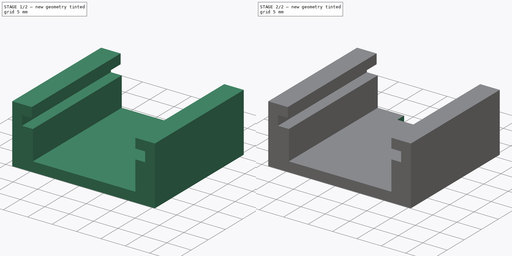
[diagram: build sequence overview — one tinted view per stage of 2, left to right]
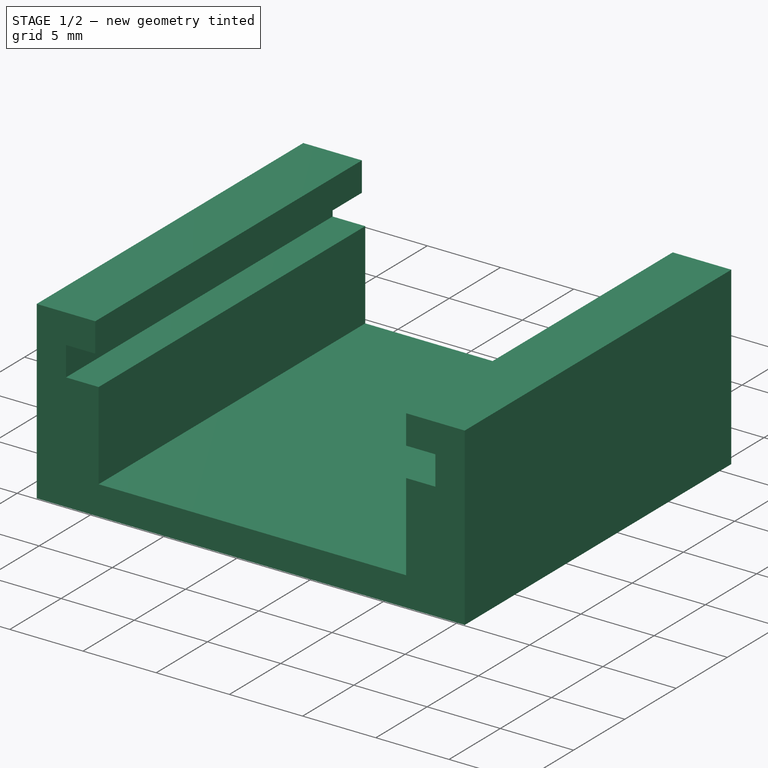
[diagram: stage 1 of 2 — iso view after this stage's code; geometry added in this stage tinted green]
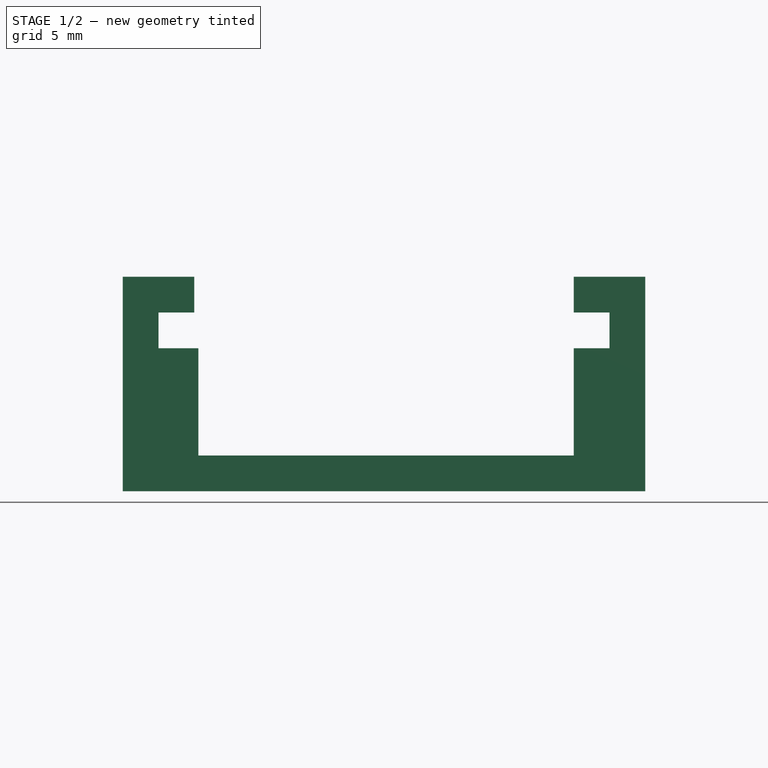
[diagram: stage 1 of 2 — front view after this stage's code; geometry added in this stage tinted green]
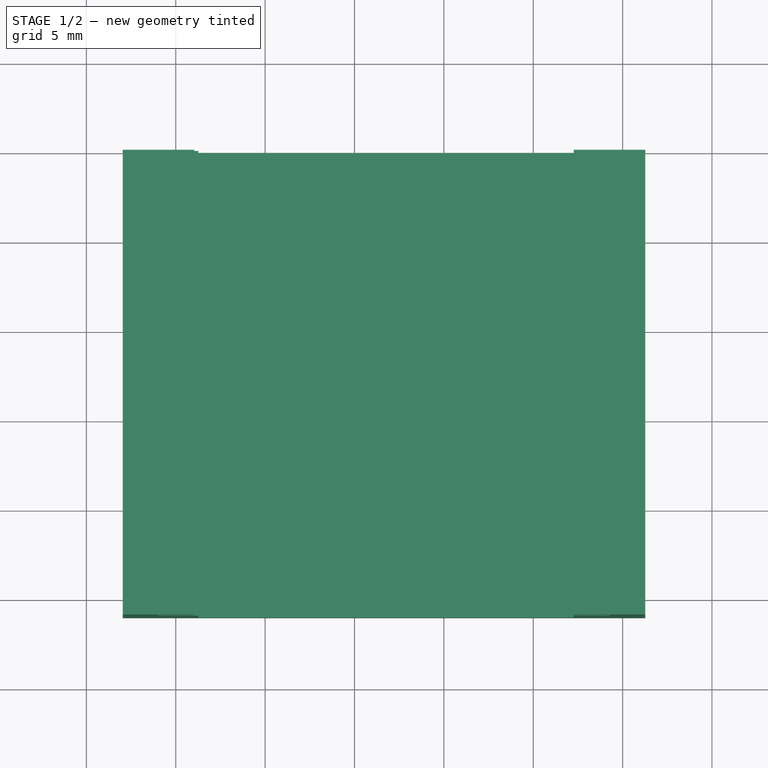
[diagram: stage 1 of 2 — top view after this stage's code; geometry added in this stage tinted green]
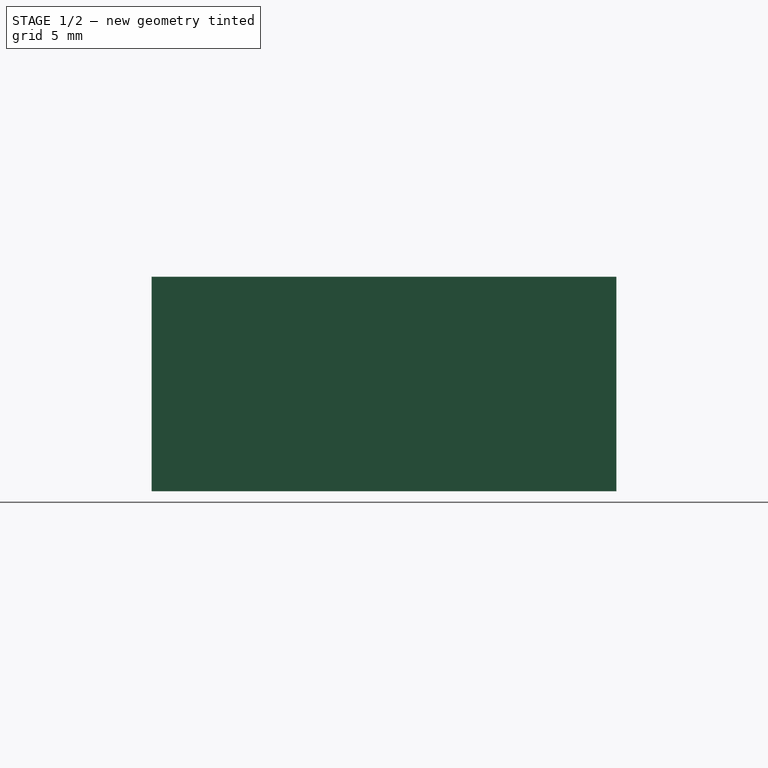
[diagram: stage 1 of 2 — right view after this stage's code; geometry added in this stage tinted green]
FCSTD DOCUMENT  (FreeCAD 0.20R29410 (Git))
Label: extrusión
License: All rights reserved
LicenseURL: http://en.wikipedia.org/wiki/All_rights_reserved
objects: Sketcher::SketchObject×2, PartDesign::Pad×1, PartDesign::Pocket×1, PartDesign::Body×1
note: 7 computed .brp shape members not serialized (recipe doc carries the construction recipe); baked Part::Feature solids carry a one-line shape summary decoded from their .brp

FEATURE [Sketcher::SketchObject] Sketch
  FullyConstrained = false
  MapMode = 5
  Placement = pos=(0,0,0) rot=(1,0,0;1.5708rad)
  Support = -> [XZ_Plane]
  sketch-geometry (16):
    g0: LineSegment StartX=-3.96322 StartY=19.8637 StartZ=0 EndX=-3.96322 EndY=21.8637 EndZ=0
    g1: LineSegment StartX=-3.96322 StartY=21.8637 StartZ=0 EndX=-7.96322 EndY=21.8637 EndZ=0
    g2: LineSegment StartX=-7.96322 StartY=21.8637 StartZ=0 EndX=-7.96322 EndY=9.86367 EndZ=0
    g3: LineSegment StartX=-3.96322 StartY=19.8637 StartZ=0 EndX=-5.96322 EndY=19.8637 EndZ=0
    g4: LineSegment StartX=-5.96322 StartY=19.8637 StartZ=0 EndX=-5.96322 EndY=17.8637 EndZ=0
    g5: LineSegment StartX=-5.96322 StartY=17.8637 StartZ=0 EndX=-3.7325 EndY=17.8637 EndZ=0
    g6: LineSegment StartX=-3.7325 StartY=17.8637 StartZ=0 EndX=-3.7325 EndY=11.8637 EndZ=0
    g7: LineSegment StartX=-3.7325 StartY=11.8637 StartZ=0 EndX=17.2675 EndY=11.8637 EndZ=0
    g8: LineSegment StartX=17.2675 StartY=11.8637 StartZ=0 EndX=17.2675 EndY=17.8637 EndZ=0
    g9: LineSegment StartX=17.2675 StartY=17.8637 StartZ=0 EndX=19.2675 EndY=17.8637 EndZ=0
    g10: LineSegment StartX=19.2675 StartY=17.8637 StartZ=0 EndX=19.2675 EndY=19.8637 EndZ=0
    g11: LineSegment StartX=19.2675 StartY=19.8637 StartZ=0 EndX=17.2675 EndY=19.8637 EndZ=0
    g12: LineSegment StartX=17.2675 StartY=19.8637 StartZ=0 EndX=17.2675 EndY=21.8637 EndZ=0
    g13: LineSegment StartX=17.2675 StartY=21.8637 StartZ=0 EndX=21.2675 EndY=21.8637 EndZ=0
    g14: LineSegment StartX=21.2675 StartY=21.8637 StartZ=0 EndX=21.2675 EndY=9.86367 EndZ=0
    g15: LineSegment StartX=-7.96322 StartY=9.86367 StartZ=0 EndX=21.2675 EndY=9.86367 EndZ=0
  constraints (45):
    c: Vertical(g0)
    c: DistanceY(g0,g0) = 2
    c: Coincident(g1,g0)
    c: Horizontal(g1)
    c: DistanceX(g1,g1) = 4
    c: Perpendicular(g1,g2)
    c: DistanceY(g2,g2) = 12
    c: Coincident(g2,g1)
    c: Coincident(g3,g0)
    c: Horizontal(g3)
    c: DistanceX(g3,g3) = 2
    c: Coincident(g4,g3)
    c: Vertical(g4)
    c: Horizontal(g5)
    c: Vertical(g6)
    c: Coincident(g7,g6)
    c: Horizontal(g7)
    c: DistanceX(g7,g7) = 21
    c: DistanceY(g6,g6) = 6
    c: DistanceY(g4,g4) = 2
    c: Coincident(g4,g5)
    c: Coincident(g6,g5)
    c: Coincident(g8,g7)
    c: Vertical(g8)
    c: Coincident(g9,g8)
    c: Horizontal(g9)
    c: Coincident(g10,g9)
    c: Coincident(g11,g10)
    c: Horizontal(g11)
    c: Vertical(g12)
    c: Coincident(g13,g12)
    c: Horizontal(g13)
    c: DistanceY(g8,g8) = 6
    c: DistanceY(g10,g10) = 2
    c: DistanceY(g12,g12) = 2
    c: DistanceX(g13,g13) = 4
    c: DistanceX(g9,g9) = 2
    c: DistanceX(g11,g11) = 2
    c: Parallel(g10,g4)
    c: Coincident(g14,g13)
    c: Vertical(g14)
    c: DistanceY(g14,g14) = 12
    c: Coincident(g15,g2)
    c: Coincident(g15,g14)
    c: Coincident(g11,g12)
FEATURE [PartDesign::Pad] Pad
  Direction = (0,-1,2e-16)
  Length = 26
  Length2 = 10
  Placement = pos=(0,0,0) rot=(1,0,0;1.5708rad)
  Profile = -> Sketch
  ReferenceAxis = -> Sketch [N_Axis]
  Type = 0
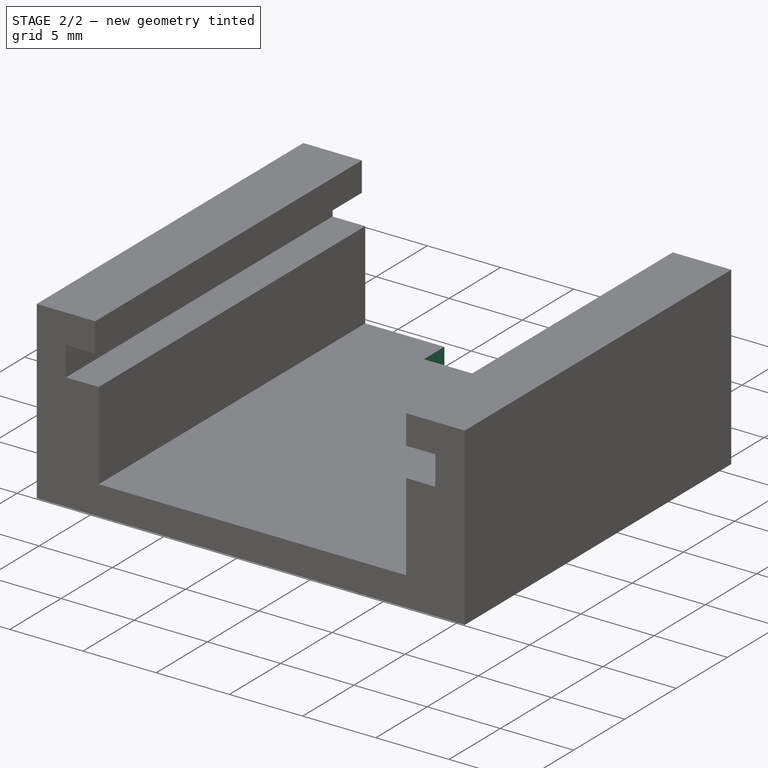
[diagram: stage 2 of 2 — iso view after this stage's code; geometry added in this stage tinted green]
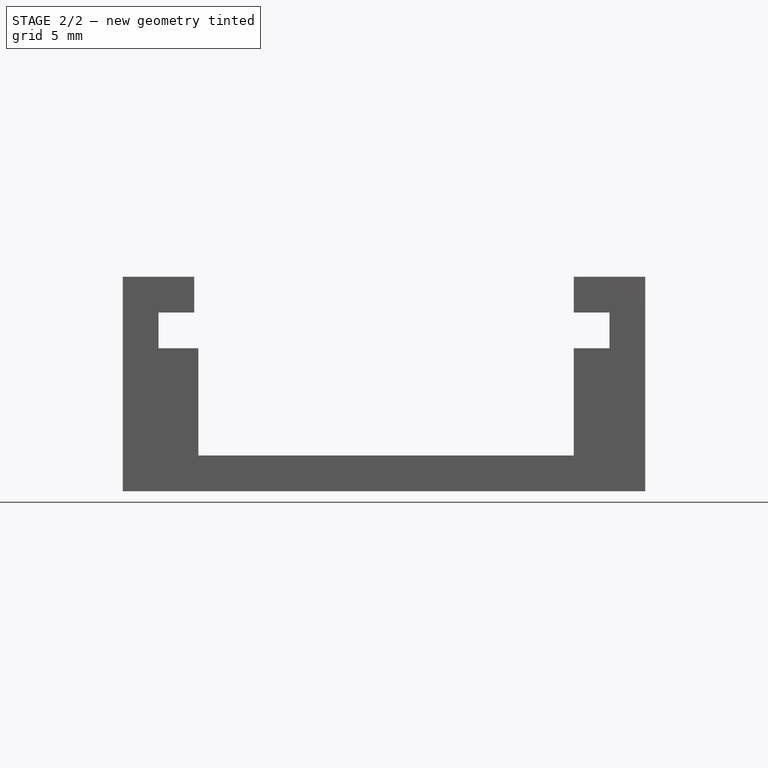
[diagram: stage 2 of 2 — front view after this stage's code; geometry added in this stage tinted green]
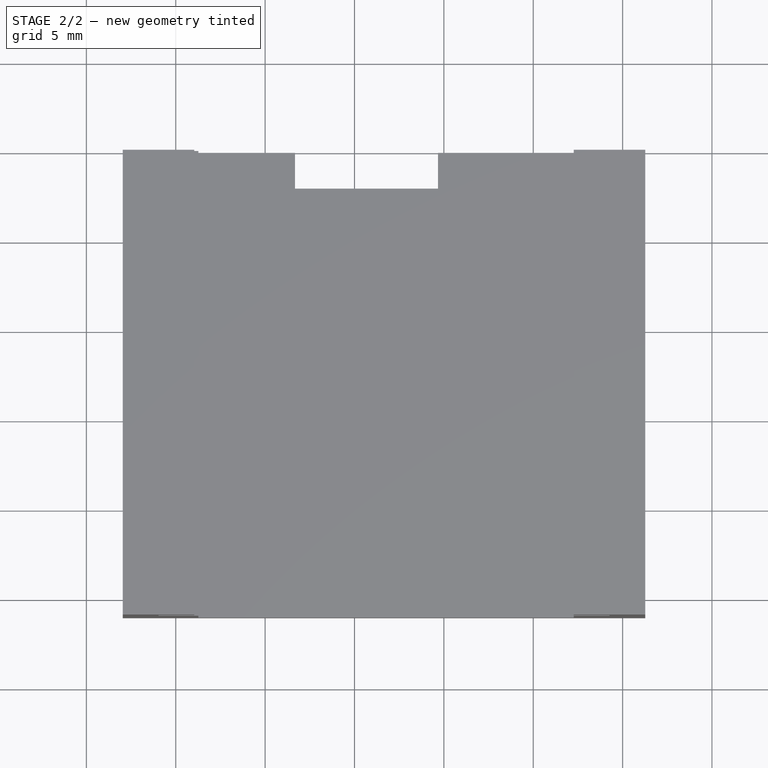
[diagram: stage 2 of 2 — top view after this stage's code; geometry added in this stage tinted green]
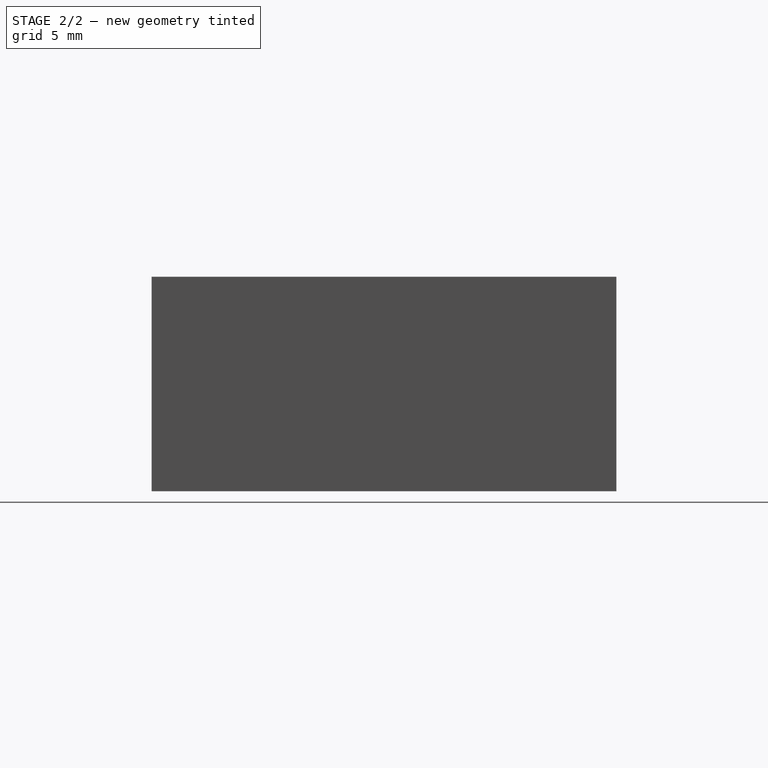
[diagram: stage 2 of 2 — right view after this stage's code; geometry added in this stage tinted green]
FEATURE [Sketcher::SketchObject] Sketch001
  FullyConstrained = false
  MapMode = 5
  Placement = pos=(0,2.6e-15,11.8637) rot=(0,0,1;3.14159rad)
  Support = -> [Pad]
  sketch-geometry (4):
    g0: LineSegment StartX=-9.67486 StartY=2 StartZ=0 EndX=-1.67486 EndY=2 EndZ=0
    g1: LineSegment StartX=-9.67486 StartY=2 StartZ=0 EndX=-9.67486 EndY=0 EndZ=0
    g2: LineSegment StartX=-1.67486 StartY=2 StartZ=0 EndX=-1.67486 EndY=0 EndZ=0
    g3: LineSegment StartX=-9.67486 StartY=0 StartZ=0 EndX=-1.67486 EndY=0 EndZ=0
  constraints (11):
    c: Horizontal(g0)
    c: DistanceX(g0,g0) = 8
    c: Coincident(g1,g0)
    c: PointOnObject(g1,g-1)
    c: Vertical(g1)
    c: DistanceY(g1,g1) = 2
    c: Coincident(g2,g0)
    c: PointOnObject(g2,g-1)
    c: Vertical(g2)
    c: Coincident(g3,g1)
    c: Coincident(g3,g2)
FEATURE [PartDesign::Pocket] Pocket
  BaseFeature = -> Pad
  Direction = (0,-2e-16,-1)
  Length = 5
  Length2 = 5
  Placement = pos=(0,0,0) rot=(1,0,0;1.5708rad)
  Profile = -> Sketch001
  ReferenceAxis = -> Sketch001 [N_Axis]
  Type = 1
FEATURE [PartDesign::Body] Body
  Group = -> [Sketch,Pad,Sketch001,Pocket]
  Origin = -> Origin
  Tip = -> Pocket
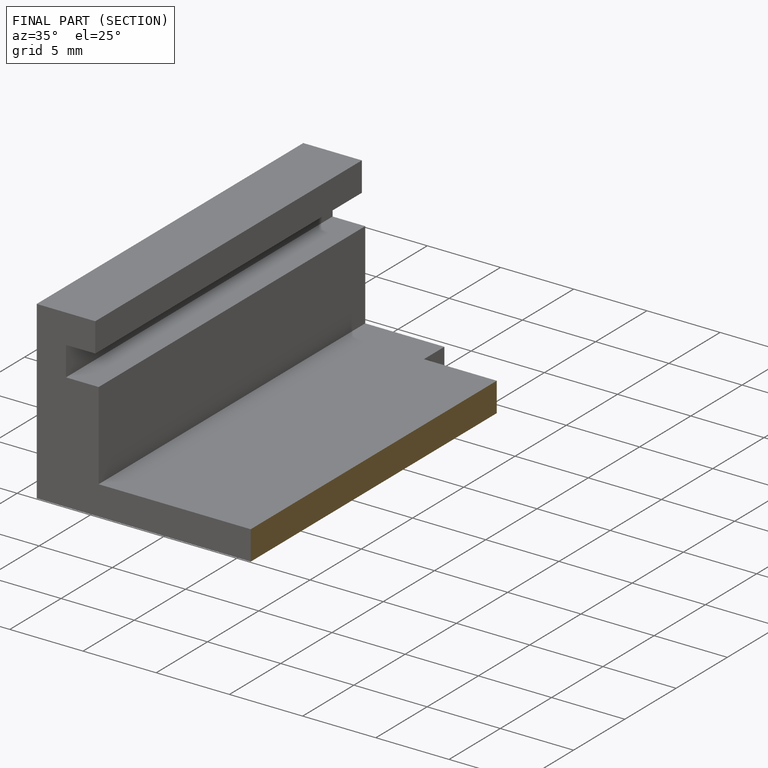
[diagram: finished part — half-section view (interior)]
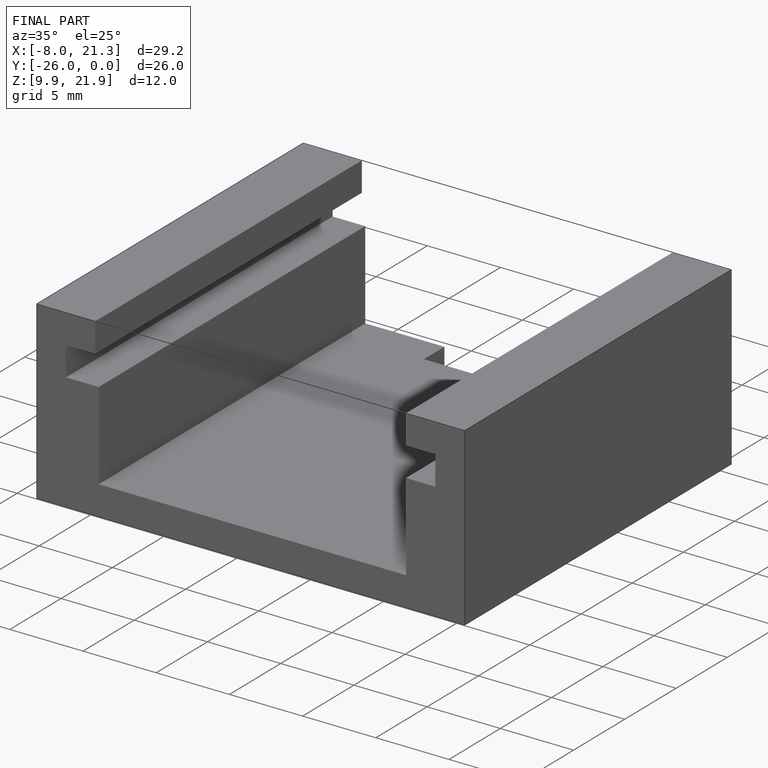
[diagram: finished part — iso view with bounding-box wireframe]
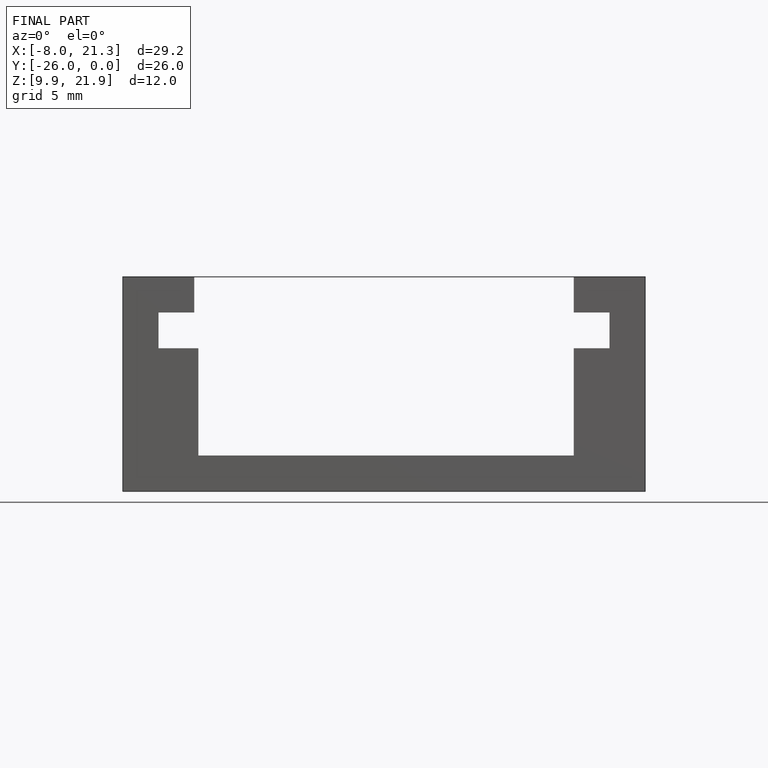
[diagram: finished part — front view with bounding-box wireframe]
